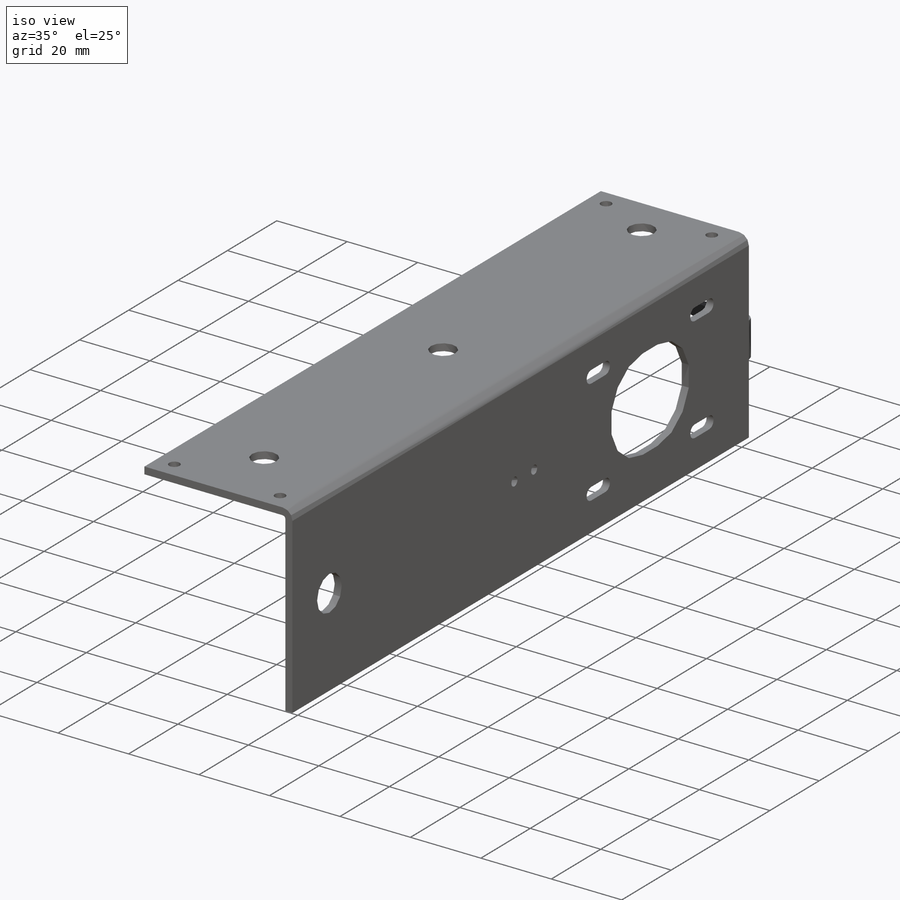
[diagram: iso view]
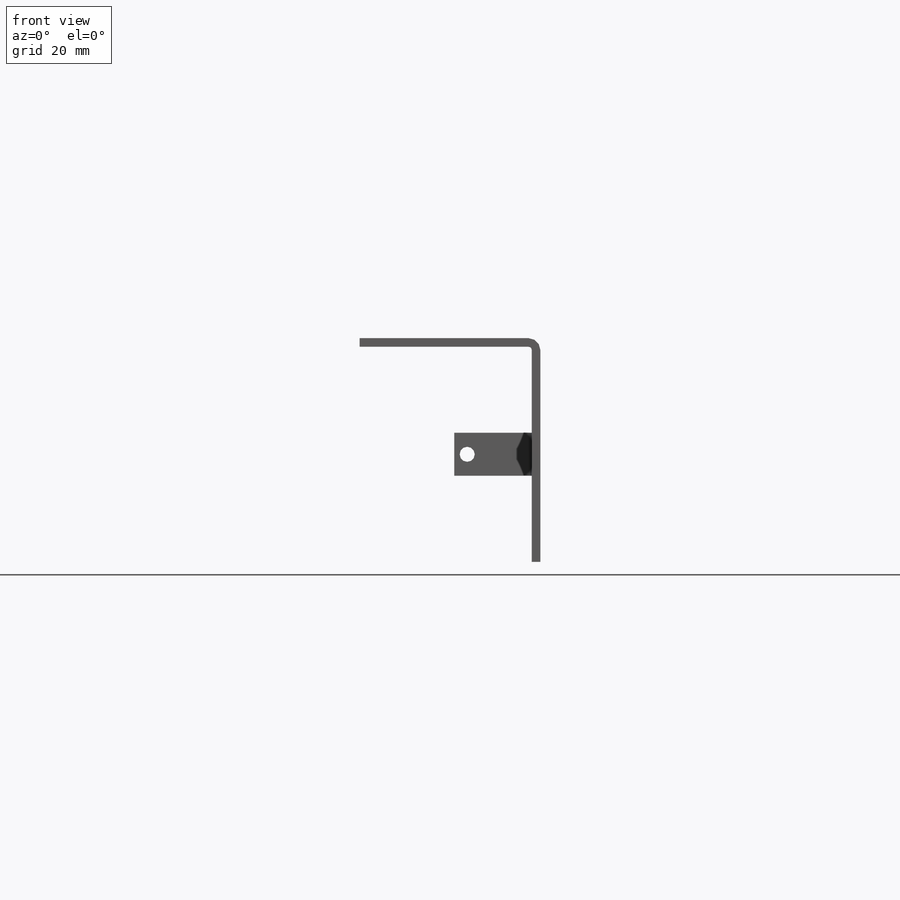
[diagram: front view]
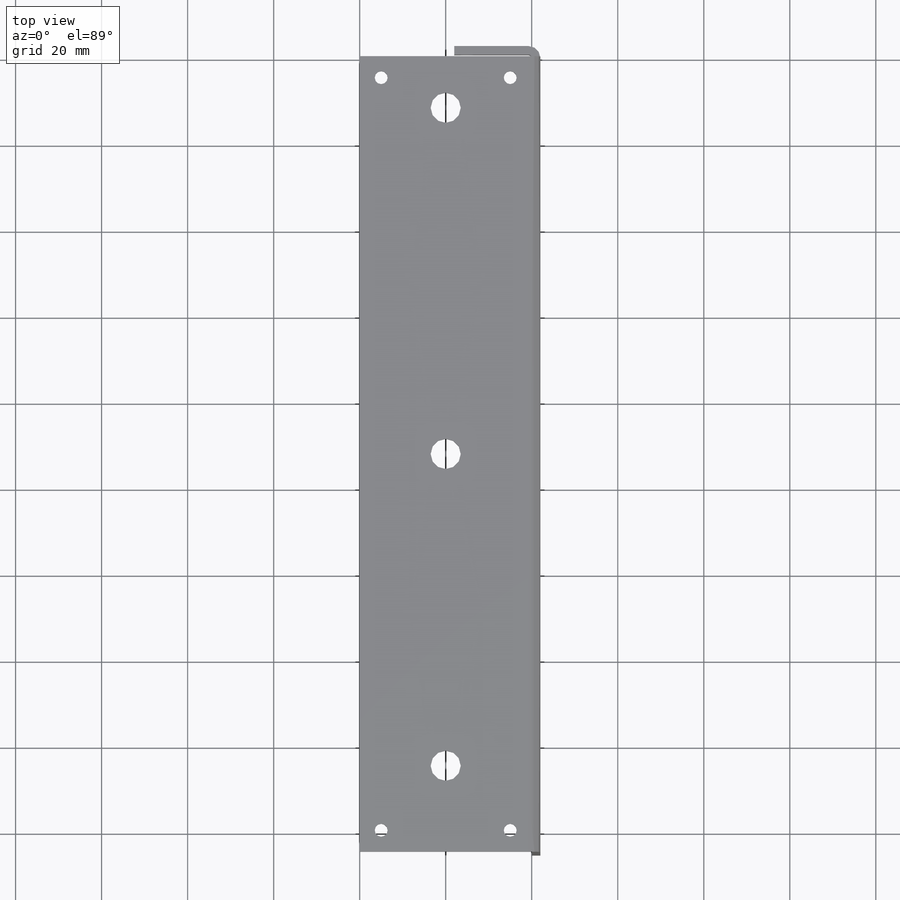
[diagram: top view]
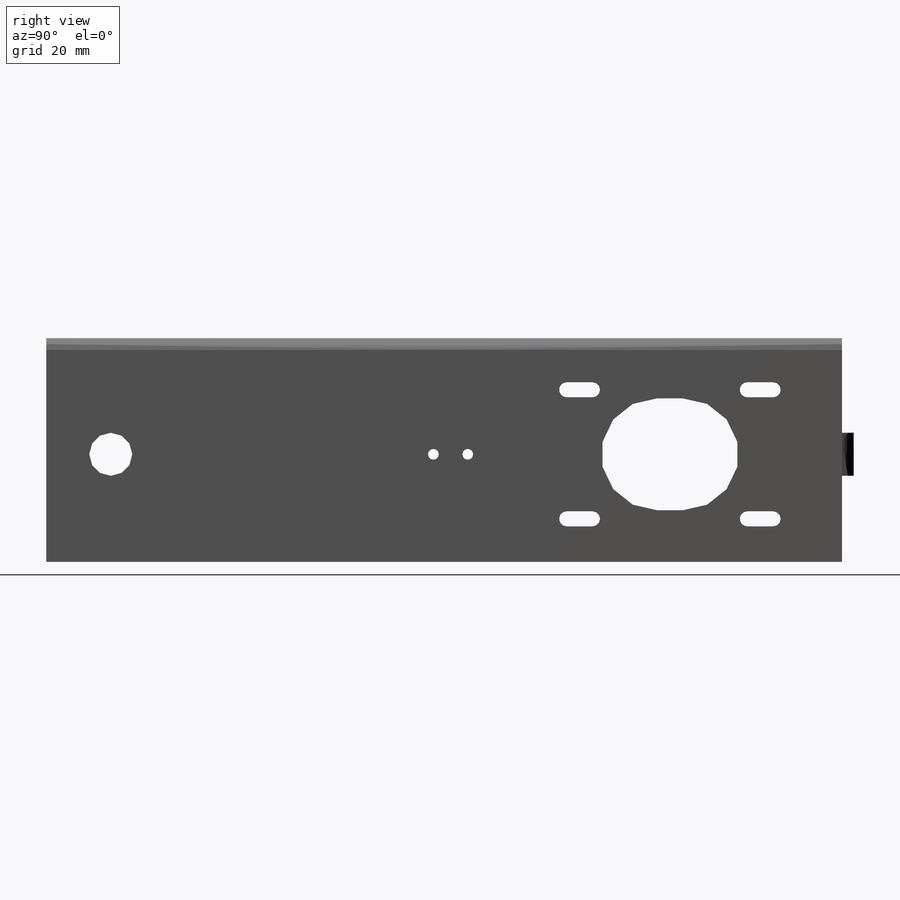
[diagram: right view]
SOLIDWORKS PART (.sldprt)
format: sldprt  version: not decoded by parser v0  size: 974,848 bytes
history: native  units: mm
features: sheet_metal_op x38, hole x4, plane x3, cut_extrude x2, thread x2, material x1, sketch x1 + 16 further entries (+10 scaffold rows collapsed)
feature tree (77):
  scaffold x10  (default folders/planes/origin — collapsed)
  material  "材質 <未指定>"
  plane  "前基準面"
  plane  "上基準面"
  plane  "右基準面"
  sketch  "草圖1"  dims[c1.D1=50.0mm c1.D2=50.0mm c2.D1=40.0mm c3.D1=0.7366mm c3.D2=0.5 c3.D3=0.0mm c3.D6=500.0mm]
  sheet_metal_op  "基材-凸緣1"
  sheet_metal_op  "草圖6"
  cut_extrude  "除料-伸長1"  [1 undecoded]
  sheet_metal_op  "草圖9"
  hole  "M3 螺紋孔2"  [1 undecoded]
  sheet_metal_op  "草圖13"
  sheet_metal_op  "草圖12"  4=25.4mm 貫穿螺孔鑽直徑=3mm 貫穿螺孔鑽深度=2mm
  sheet_metal_op  "草圖14"
  cut_extrude  "除料-伸長6"  [1 undecoded]
  hole  "Ø3.5 (3.5) 直徑孔1"  [1 undecoded]
  sheet_metal_op  "草圖16"
  sheet_metal_op  "草圖15"  4=25.4mm 貫穿孔直徑=3.5mm 貫穿孔深度=2mm
  hole  "Ø7.0 (7) 直徑孔1"  [1 undecoded]
  sheet_metal_op  "草圖20"
  sheet_metal_op  "草圖19"  4=25.4mm 鑽孔直徑=7mm 鑽孔深度=6mm 導頭角度=118deg
  hole  "M3x0.5 螺紋孔1"  [1 undecoded]
  sheet_metal_op  "草圖23"
  sheet_metal_op  "草圖22"  4=25.4mm 貫穿螺孔鑽直徑=2.5mm 貫穿螺孔鑽深度=42mm
  thread  "鑽孔螺紋1"  Diameter=3mm  [1 undecoded]
  thread  "鑽孔螺紋2"  Diameter=3mm  [1 undecoded]
  sheet_metal_op  "彎折-線1"
  sheet_metal_op  "邊界方塊1"
  sheet_metal_op  "鈑金1"
  "平板-型式1"
  sheet_metal_op  "彎折-線2"
  sheet_metal_op  "邊界方塊2"
  "草圖變形1"
  sheet_metal_op  "鈑金2"
  "平板-型式1"
  sheet_metal_op  "彎折-線2"
  sheet_metal_op  "邊界方塊2"
  "草圖變形1"
  sheet_metal_op  "鈑金3"
  "平板-型式1"
  sheet_metal_op  "彎折-線2"
  sheet_metal_op  "邊界方塊2"
  "草圖變形1"
  sheet_metal_op  "鈑金5"
  "平板-型式1"
  sheet_metal_op  "彎折-線2"
  sheet_metal_op  "邊界方塊2"
  "草圖變形1"
  sheet_metal_op  "鈑金6"
  "平板-型式1"
  sheet_metal_op  "彎折-線2"
  sheet_metal_op  "邊界方塊2"
  "草圖變形1"
  sheet_metal_op  "鈑金7"
  "平板-型式1"
  sheet_metal_op  "彎折-線2"
  sheet_metal_op  "邊界方塊2"
  "草圖變形1"
  sheet_metal_op  "鈑金9"
  "平板-型式1"
  sheet_metal_op  "彎折-線2"
  sheet_metal_op  "邊界方塊2"
  "草圖變形1"
  sheet_metal_op  "鈑金12"
  "平板-型式1"
  sheet_metal_op  "彎折-線2"
  sheet_metal_op  "邊界方塊2"
  "草圖變形1"
decode coverage: 7 of 47 modeling features carry decoded parameters; 16 rows unclassified (native names shown)
note: 8 parameter values undecoded
summary: no parameter record found for 6 features
note: suppression state not decoded; provenance and decode notes live in map.json
